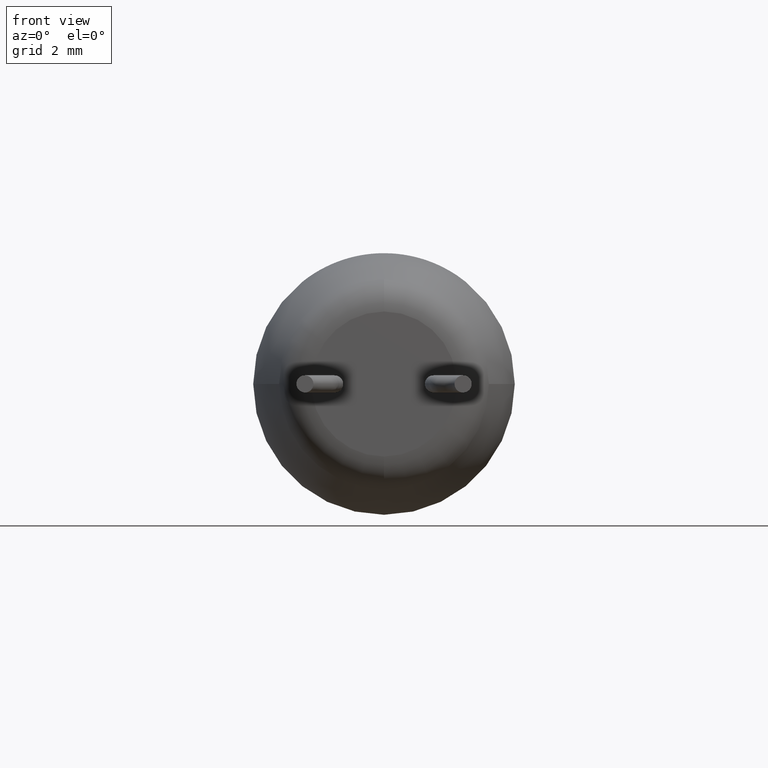
[diagram: clean part render]
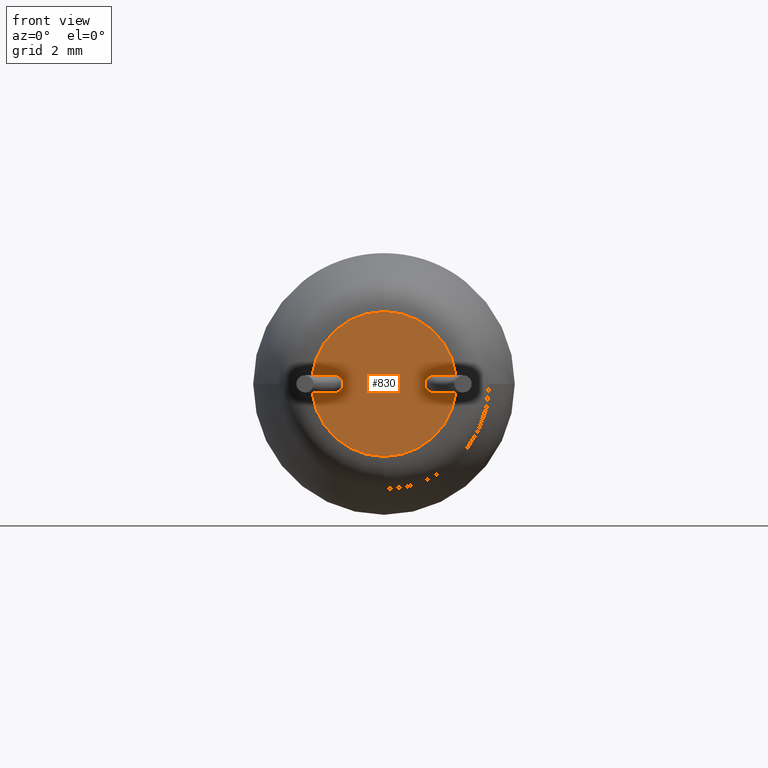
[diagram: same view with one face highlighted and labeled with its STEP entity id]
A machine part, front view. The second image highlights one B-rep face of the part: STEP entity #830.
In plain terms, the highlighted planar face has unit normal (0, 1, 0).
Its self-contained STEP definition (entity closure, byte-faithful):
#143 = DIRECTION ( 'NONE',  ( 0.0000000000000000000, 0.0000000000000000000, -1.000000000000000000 ) ) ;
#241 = DIRECTION ( 'NONE',  ( 0.0000000000000000000, 0.0000000000000000000, 1.000000000000000000 ) ) ;
#380 = EDGE_CURVE ( 'NONE', #5435, #4259, #2186, .T. ) ;
#534 = CARTESIAN_POINT ( 'NONE',  ( 1.586592000000000000, 0.0000000000000000000, 0.0000000000000000000 ) ) ;
#554 = CARTESIAN_POINT ( 'NONE',  ( -1.586592000000000000, 0.0000000000000000000, 0.0000000000000000000 ) ) ;
#632 = DIRECTION ( 'NONE',  ( -0.0000000000000000000, -1.000000000000000000, -0.0000000000000000000 ) ) ;
#830 = ADVANCED_FACE ( 'NONE', ( #5206, #5143, #1504 ), #2551, .F. ) ;
#897 = ORIENTED_EDGE ( 'NONE', *, *, #3953, .T. ) ;
#919 = AXIS2_PLACEMENT_3D ( 'NONE', #5493, #632, #241 ) ;
#1116 = ORIENTED_EDGE ( 'NONE', *, *, #4446, .T. ) ;
#1152 = AXIS2_PLACEMENT_3D ( 'NONE', #4183, #3715, #4100 ) ;
#1242 = AXIS2_PLACEMENT_3D ( 'NONE', #1657, #2101, #5110 ) ;
#1279 = ORIENTED_EDGE ( 'NONE', *, *, #5428, .T. ) ;
#1479 = DIRECTION ( 'NONE',  ( 0.0000000000000000000, 0.0000000000000000000, 1.000000000000000000 ) ) ;
#1504 = FACE_BOUND ( 'NONE', #4092, .T. ) ;
#1521 = CARTESIAN_POINT ( 'NONE',  ( -1.861591999999999200, 0.0000000000000000000, 0.0000000000000000000 ) ) ;
#1657 = CARTESIAN_POINT ( 'NONE',  ( 0.0000000000000000000, 0.0000000000000000000, 0.0000000000000000000 ) ) ;
#1795 = AXIS2_PLACEMENT_3D ( 'NONE', #4932, #4504, #2017 ) ;
#1817 = AXIS2_PLACEMENT_3D ( 'NONE', #534, #3606, #143 ) ;
#2017 = DIRECTION ( 'NONE',  ( 0.0000000000000000000, 0.0000000000000000000, 1.000000000000000000 ) ) ;
#2042 = CIRCLE ( 'NONE', #1152, 0.2749999999999993000 ) ;
#2101 = DIRECTION ( 'NONE',  ( 0.0000000000000000000, 1.000000000000000000, 0.0000000000000000000 ) ) ;
#2165 = ORIENTED_EDGE ( 'NONE', *, *, #380, .F. ) ;
#2186 = CIRCLE ( 'NONE', #1795, 0.2749999999999993000 ) ;
#2378 = ORIENTED_EDGE ( 'NONE', *, *, #4376, .T. ) ;
#2424 = VERTEX_POINT ( 'NONE', #3765 ) ;
#2548 = EDGE_LOOP ( 'NONE', ( #1279, #1116 ) ) ;
#2551 = PLANE ( 'NONE',  #1242 ) ;
#2673 = ORIENTED_EDGE ( 'NONE', *, *, #5385, .F. ) ;
#2680 = VERTEX_POINT ( 'NONE', #3533 ) ;
#2699 = CARTESIAN_POINT ( 'NONE',  ( 3.488120169603998400E-016, 0.0000000000000000000, 2.327451060148806800 ) ) ;
#2782 = CARTESIAN_POINT ( 'NONE',  ( 1.861591999999999200, 0.0000000000000000000, 3.367778697655213900E-017 ) ) ;
#3036 = AXIS2_PLACEMENT_3D ( 'NONE', #5084, #4177, #5065 ) ;
#3450 = CIRCLE ( 'NONE', #1817, 0.2749999999999993000 ) ;
#3533 = CARTESIAN_POINT ( 'NONE',  ( 0.0000000000000000000, 0.0000000000000000000, -2.327451060148806800 ) ) ;
#3606 = DIRECTION ( 'NONE',  ( -0.0000000000000000000, 1.000000000000000000, -0.0000000000000000000 ) ) ;
#3628 = VERTEX_POINT ( 'NONE', #2782 ) ;
#3681 = CIRCLE ( 'NONE', #3893, 0.2749999999999993000 ) ;
#3715 = DIRECTION ( 'NONE',  ( -0.0000000000000000000, 1.000000000000000000, -0.0000000000000000000 ) ) ;
#3765 = CARTESIAN_POINT ( 'NONE',  ( 1.311592000000000800, 0.0000000000000000000, 0.0000000000000000000 ) ) ;
#3853 = CIRCLE ( 'NONE', #919, 2.327451060148806800 ) ;
#3893 = AXIS2_PLACEMENT_3D ( 'NONE', #554, #4069, #1479 ) ;
#3953 = EDGE_CURVE ( 'NONE', #3628, #2424, #2042, .T. ) ;
#4069 = DIRECTION ( 'NONE',  ( -0.0000000000000000000, -1.000000000000000000, -0.0000000000000000000 ) ) ;
#4092 = EDGE_LOOP ( 'NONE', ( #2165, #2673 ) ) ;
#4100 = DIRECTION ( 'NONE',  ( 0.0000000000000000000, 0.0000000000000000000, -1.000000000000000000 ) ) ;
#4177 = DIRECTION ( 'NONE',  ( -0.0000000000000000000, -1.000000000000000000, -0.0000000000000000000 ) ) ;
#4183 = CARTESIAN_POINT ( 'NONE',  ( 1.586592000000000000, 0.0000000000000000000, 0.0000000000000000000 ) ) ;
#4259 = VERTEX_POINT ( 'NONE', #4412 ) ;
#4376 = EDGE_CURVE ( 'NONE', #2424, #3628, #3450, .T. ) ;
#4412 = CARTESIAN_POINT ( 'NONE',  ( -1.311592000000000800, 0.0000000000000000000, 3.367778697655213900E-017 ) ) ;
#4446 = EDGE_CURVE ( 'NONE', #4529, #2680, #3853, .T. ) ;
#4504 = DIRECTION ( 'NONE',  ( -0.0000000000000000000, -1.000000000000000000, -0.0000000000000000000 ) ) ;
#4529 = VERTEX_POINT ( 'NONE', #2699 ) ;
#4685 = EDGE_LOOP ( 'NONE', ( #2378, #897 ) ) ;
#4932 = CARTESIAN_POINT ( 'NONE',  ( -1.586592000000000000, 0.0000000000000000000, 0.0000000000000000000 ) ) ;
#5065 = DIRECTION ( 'NONE',  ( 0.0000000000000000000, 0.0000000000000000000, 1.000000000000000000 ) ) ;
#5084 = CARTESIAN_POINT ( 'NONE',  ( 0.0000000000000000000, 0.0000000000000000000, 0.0000000000000000000 ) ) ;
#5110 = DIRECTION ( 'NONE',  ( 0.0000000000000000000, -0.0000000000000000000, 1.000000000000000000 ) ) ;
#5143 = FACE_OUTER_BOUND ( 'NONE', #2548, .T. ) ;
#5206 = FACE_BOUND ( 'NONE', #4685, .T. ) ;
#5385 = EDGE_CURVE ( 'NONE', #4259, #5435, #3681, .T. ) ;
#5428 = EDGE_CURVE ( 'NONE', #2680, #4529, #5708, .T. ) ;
#5435 = VERTEX_POINT ( 'NONE', #1521 ) ;
#5493 = CARTESIAN_POINT ( 'NONE',  ( 0.0000000000000000000, 0.0000000000000000000, 0.0000000000000000000 ) ) ;
#5708 = CIRCLE ( 'NONE', #3036, 2.327451060148806800 ) ;